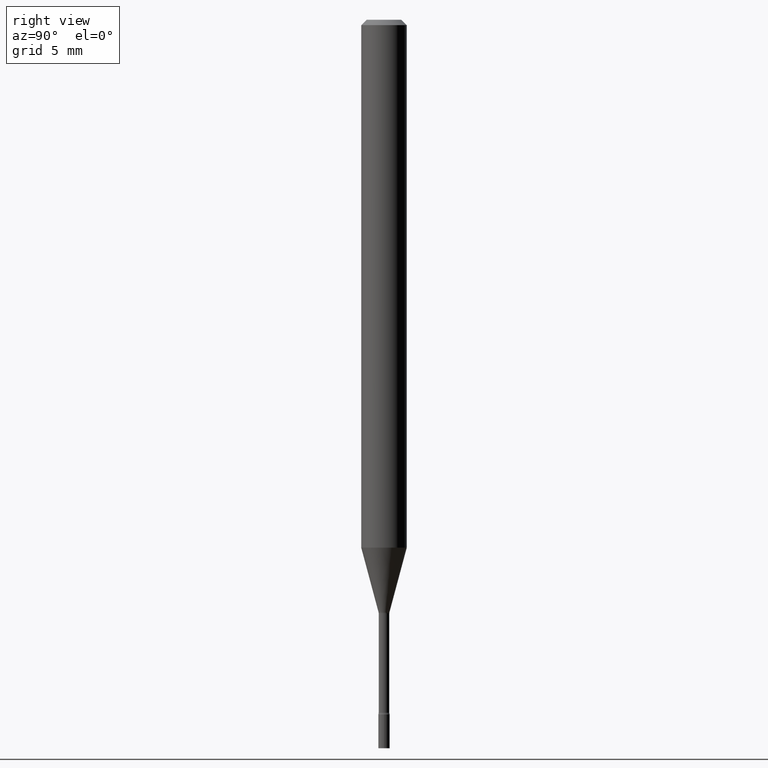
[diagram: clean part render]
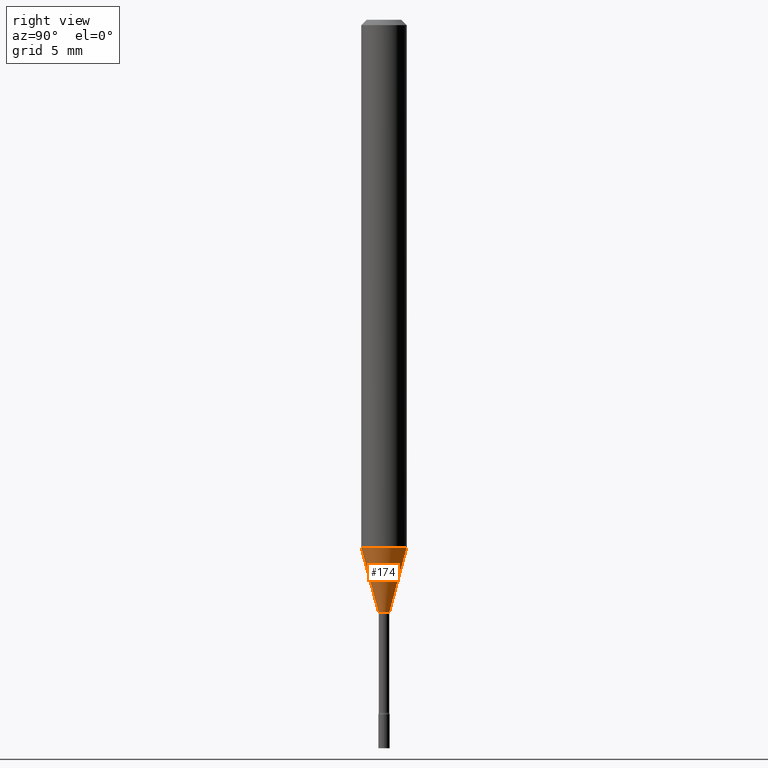
[diagram: same view with one face highlighted and labeled with its STEP entity id]
A machine part, right view. The second image highlights one B-rep face of the part: STEP entity #174.
In plain terms, the highlighted conical surface has half-angle 15 deg.
Its self-contained STEP definition (entity closure, byte-faithful):
#19 = VERTEX_POINT ( 'NONE', #37 ) ;
#32 = ORIENTED_EDGE ( 'NONE', *, *, #179, .T. ) ;
#33 = VERTEX_POINT ( 'NONE', #268 ) ;
#37 = CARTESIAN_POINT ( 'NONE',  ( 2.755524256971660979E-16, 0.01506111260565830626, -1.626092501787273159 ) ) ;
#85 = FACE_OUTER_BOUND ( 'NONE', #461, .T. ) ;
#89 = DIRECTION ( 'NONE',  ( 1.839019923739597554E-15, 0.2588190451025245697, 0.9659258262890670910 ) ) ;
#106 = LINE ( 'NONE', #394, #333 ) ;
#115 = DIRECTION ( 'NONE',  ( -2.445459087978587807E-29, 3.491495255868049230E-15, 1.000000000000000000 ) ) ;
#129 = AXIS2_PLACEMENT_3D ( 'NONE', #406, #115, #206 ) ;
#147 = VERTEX_POINT ( 'NONE', #245 ) ;
#170 = CARTESIAN_POINT ( 'NONE',  ( 3.543588001027327383E-29, -5.059344789351957682E-15, -1.449048163777072684 ) ) ;
#174 = ADVANCED_FACE ( 'NONE', ( #85 ), #471, .T. ) ;
#179 = EDGE_CURVE ( 'NONE', #33, #19, #402, .T. ) ;
#206 = DIRECTION ( 'NONE',  ( -6.982962677686266711E-15, -1.000000000000000000, 0.000000000000000000 ) ) ;
#209 = AXIS2_PLACEMENT_3D ( 'NONE', #483, #251, #334 ) ;
#211 = ORIENTED_EDGE ( 'NONE', *, *, #310, .T. ) ;
#224 = EDGE_CURVE ( 'NONE', #147, #374, #315, .T. ) ;
#225 = LINE ( 'NONE', #297, #410 ) ;
#245 = CARTESIAN_POINT ( 'NONE',  ( -4.364351673553563186E-16, -0.06250000000000507927, -1.449048163777072240 ) ) ;
#251 = DIRECTION ( 'NONE',  ( -2.445459087978587807E-29, 3.491495255868049230E-15, 1.000000000000000000 ) ) ;
#268 = CARTESIAN_POINT ( 'NONE',  ( -1.051711872097419819E-16, -0.01506111260566966002, -1.626092501787273159 ) ) ;
#297 = CARTESIAN_POINT ( 'NONE',  ( 1.070156415442339207E-16, 0.01506111260565830626, -1.626092501787273159 ) ) ;
#310 = EDGE_CURVE ( 'NONE', #19, #374, #225, .T. ) ;
#313 = ORIENTED_EDGE ( 'NONE', *, *, #469, .F. ) ;
#315 = CIRCLE ( 'NONE', #486, 0.06250000000000000000 ) ;
#333 = VECTOR ( 'NONE', #390, 39.37007874015748143 ) ;
#334 = DIRECTION ( 'NONE',  ( -6.982962677686266711E-15, -1.000000000000000000, 0.000000000000000000 ) ) ;
#342 = CARTESIAN_POINT ( 'NONE',  ( 4.440892098500978191E-16, 0.06249999999999492767, -1.449048163777072906 ) ) ;
#354 = ORIENTED_EDGE ( 'NONE', *, *, #224, .F. ) ;
#374 = VERTEX_POINT ( 'NONE', #342 ) ;
#379 = DIRECTION ( 'NONE',  ( -2.445459087978587807E-29, 3.491495255868049230E-15, 1.000000000000000000 ) ) ;
#390 = DIRECTION ( 'NONE',  ( -1.807323732225327773E-15, -0.2588190451025178529, 0.9659258262890690894 ) ) ;
#394 = CARTESIAN_POINT ( 'NONE',  ( -1.051711872097419819E-16, -0.01506111260566966002, -1.626092501787273159 ) ) ;
#402 = CIRCLE ( 'NONE', #209, 0.01506111260566398227 ) ;
#406 = CARTESIAN_POINT ( 'NONE',  ( 3.976542686389524880E-29, -5.677494255592872266E-15, -1.626092501787273159 ) ) ;
#410 = VECTOR ( 'NONE', #89, 39.37007874015748854 ) ;
#461 = EDGE_LOOP ( 'NONE', ( #32, #211, #354, #313 ) ) ;
#469 = EDGE_CURVE ( 'NONE', #33, #147, #106, .T. ) ;
#471 = CONICAL_SURFACE ( 'NONE', #129, 0.01506111260566398227, 0.2617993877991499074 ) ;
#483 = CARTESIAN_POINT ( 'NONE',  ( 3.976542686389524880E-29, -5.677494255592872266E-15, -1.626092501787273159 ) ) ;
#486 = AXIS2_PLACEMENT_3D ( 'NONE', #170, #379, #487 ) ;
#487 = DIRECTION ( 'NONE',  ( -6.982962677686265922E-15, -1.000000000000000000, 4.370956789862821150E-15 ) ) ;